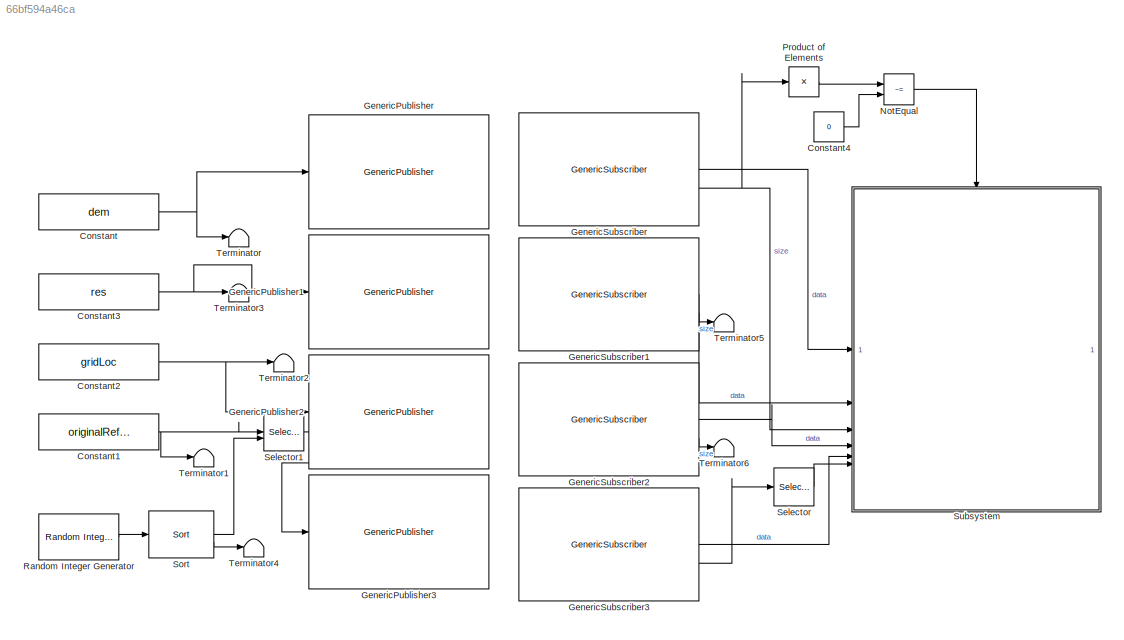
MODEL slx_66bf594a46ca
KIND model
CONFIG AbsTol = auto
CONFIG EnableMultiTasking = off
CONFIG FixedStep = auto
CONFIG MaxStep = auto
CONFIG MinStep = auto
CONFIG RelTol = 1e-3
CONFIG SampleTimeConstraint = Unconstrained
CONFIG SolverName = FixedStepAuto
CONFIG StartTime = 0.0
CONFIG StopTime = 10.0
WORKSPACE source: mxarray member
WORKSPACE SL_ROS_VariableLengthArrays_MaxSizes: object (value not decoded)
BLOCK [Constant] Constant
  Value = dem
  VectorParams1D = off
BLOCK [Constant] Constant1
  Value = originalReferencePath
  VectorParams1D = off
BLOCK [Constant] Constant2
  Value = gridLoc
BLOCK [Constant] Constant3
  Value = res
BLOCK [Constant] Constant4
  Value = 0
BLOCK [Reference] GenericPublisher  REF=roshelperlib/GenericPublisher  (lib defined in slx_3328ea0e13a5)
  SourceBlock = roshelperlib/GenericPublisher
BLOCK [Reference] GenericPublisher1  REF=roshelperlib/GenericPublisher  (lib defined in slx_3328ea0e13a5)
  SourceBlock = roshelperlib/GenericPublisher
BLOCK [Reference] GenericPublisher2  REF=roshelperlib/GenericPublisher  (lib defined in slx_3328ea0e13a5)
  SourceBlock = roshelperlib/GenericPublisher
BLOCK [Reference] GenericPublisher3  REF=roshelperlib/GenericPublisher  (lib defined in slx_3328ea0e13a5)
  SourceBlock = roshelperlib/GenericPublisher
BLOCK [Reference] GenericSubscriber  REF=roshelperlib/GenericSubscriber  (lib defined in slx_3328ea0e13a5)
  SourceBlock = roshelperlib/GenericSubscriber
BLOCK [Reference] GenericSubscriber1  REF=roshelperlib/GenericSubscriber  (lib defined in slx_3328ea0e13a5)
  SourceBlock = roshelperlib/GenericSubscriber
BLOCK [Reference] GenericSubscriber2  REF=roshelperlib/GenericSubscriber  (lib defined in slx_3328ea0e13a5)
  SourceBlock = roshelperlib/GenericSubscriber
BLOCK [Reference] GenericSubscriber3  REF=roshelperlib/GenericSubscriber  (lib defined in slx_3328ea0e13a5)
  SourceBlock = roshelperlib/GenericSubscriber
BLOCK [RelationalOperator] NotEqual
  InputSameDT = off
  Operator = ~=
  OutDataTypeStr = boolean
  RndMeth = Simplest
BLOCK [Product] Product of Elements
  Inputs = *
BLOCK [Reference] Random Integer Generator  REF=commrandsrc3/Random Integer
Generator
  SourceBlock = commrandsrc3/Random Integer\nGenerator
  SourceType = Random Integer Generator
BLOCK [Selector] Selector
  IndexOptions = Index vector (dialog)
  Indices = 1
  InputPortWidth = 2
  OutputSizes = 1
BLOCK [Selector] Selector1
  IndexOptions = Starting and ending indices (port),Select all
  Indices = [1 3],1
  InputPortWidth = 3
  NumberOfDimensions = 2
  OutputSizes = 1,1
BLOCK [Reference] Sort  REF=dspstat3/Sort
  SourceBlock = dspstat3/Sort
  SourceType = Sort
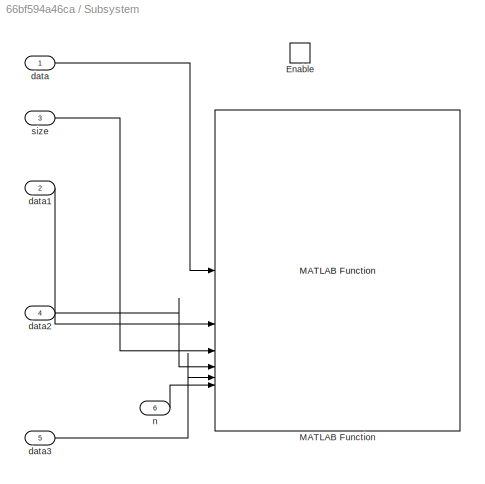
BLOCK [SubSystem] Subsystem
BLOCK [EnablePort] Subsystem/Enable
BLOCK [Reference] Subsystem/MATLAB Function  REF=roshelperlib/MATLAB Function  (lib defined in slx_3328ea0e13a5)
  SourceBlock = roshelperlib/MATLAB Function
BLOCK [Inport] Subsystem/data
BLOCK [Inport] Subsystem/data1
  Port = 2
BLOCK [Inport] Subsystem/data2
  Port = 4
BLOCK [Inport] Subsystem/data3
  Port = 5
BLOCK [Inport] Subsystem/n
  Port = 6
BLOCK [Inport] Subsystem/size
  Port = 3
BLOCK [Terminator] Terminator
BLOCK [Terminator] Terminator1
BLOCK [Terminator] Terminator2
BLOCK [Terminator] Terminator3
BLOCK [Terminator] Terminator4
BLOCK [Terminator] Terminator5
BLOCK [Terminator] Terminator6
NET Constant1:1 -> Selector1:1, Terminator1:1
NET Constant2:1 -> GenericPublisher2:1, Terminator2:1
NET Constant3:1 -> GenericPublisher1:1, Terminator3:1
LINE Constant4:1 -> NotEqual:2
NET Constant:1 -> GenericPublisher:1, Terminator:1
LINE GenericSubscriber1:1 -> Subsystem:2
LINE GenericSubscriber1:2 -> Terminator5:1
LINE GenericSubscriber2:1 -> Subsystem:4
LINE GenericSubscriber2:2 -> Terminator6:1
LINE GenericSubscriber3:1 -> Subsystem:5
LINE GenericSubscriber3:2 -> Selector:1
LINE GenericSubscriber:1 -> Subsystem:1
NET GenericSubscriber:2 -> Product of Elements:1, Subsystem:3
LINE NotEqual:1 -> Subsystem:enable
LINE Product of Elements:1 -> NotEqual:1
LINE Random Integer Generator:1 -> Sort:1
LINE Selector1:1 -> GenericPublisher3:1
LINE Selector:1 -> Subsystem:6
LINE Sort:1 -> Selector1:2
LINE Sort:2 -> Terminator4:1
LINE Subsystem/data1:1 -> Subsystem/MATLAB Function:2
LINE Subsystem/data2:1 -> Subsystem/MATLAB Function:4
LINE Subsystem/data3:1 -> Subsystem/MATLAB Function:5
LINE Subsystem/data:1 -> Subsystem/MATLAB Function:1
LINE Subsystem/n:1 -> Subsystem/MATLAB Function:6
LINE Subsystem/size:1 -> Subsystem/MATLAB Function:3
note: NET lines group one-source signal fan-out (src -> all destinations, sorted); 1:1 wires keep LINE
